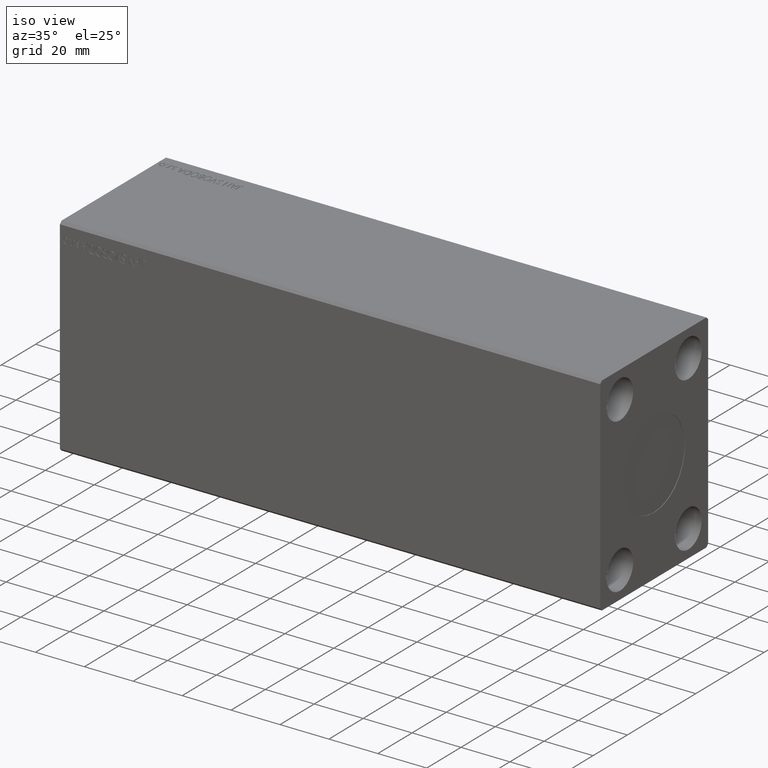
[diagram: clean part render]
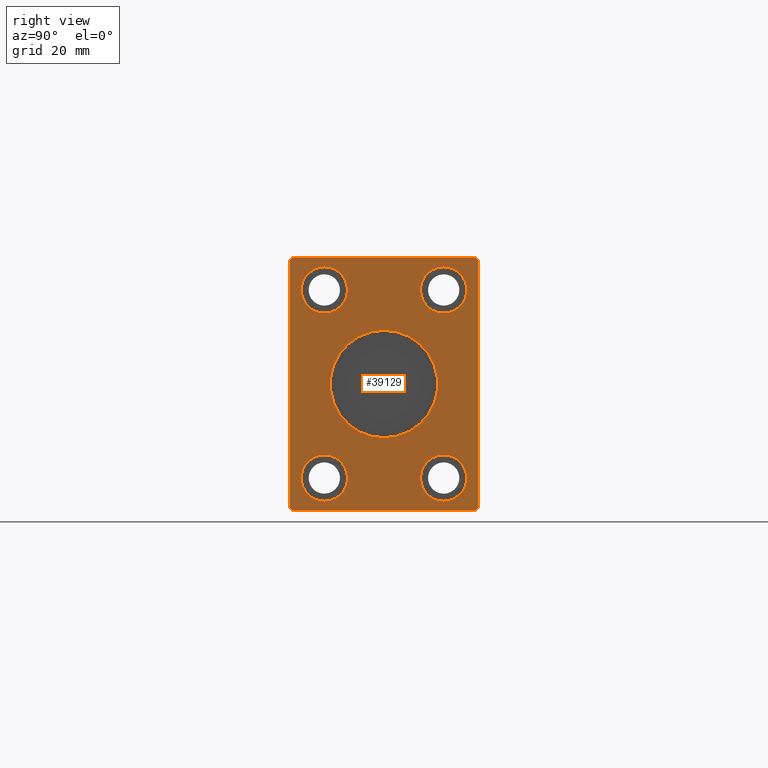
[diagram: tour spotlight — one face highlighted and labeled with its STEP entity id]
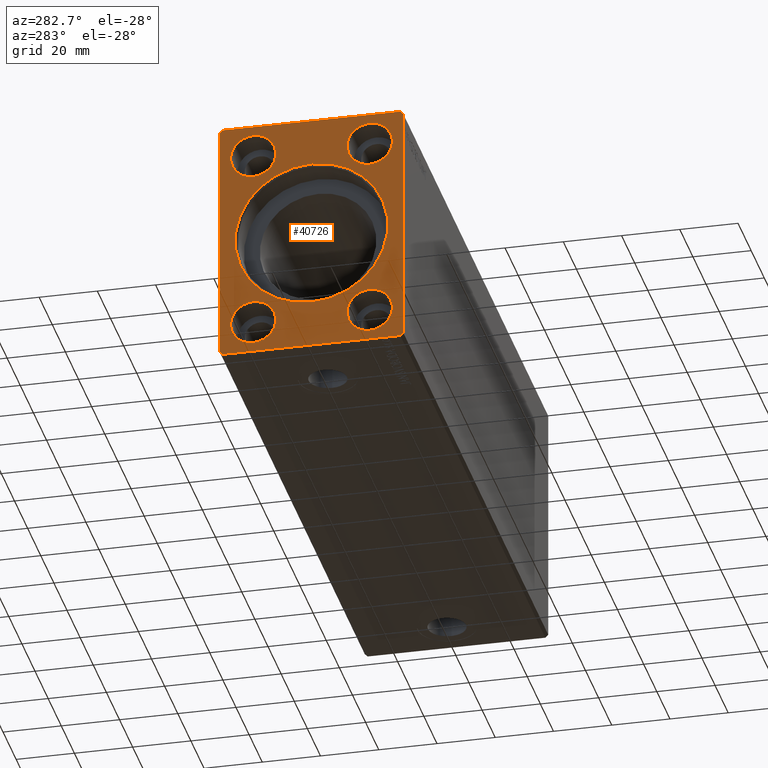
[diagram: tour spotlight — one face highlighted and labeled with its STEP entity id]
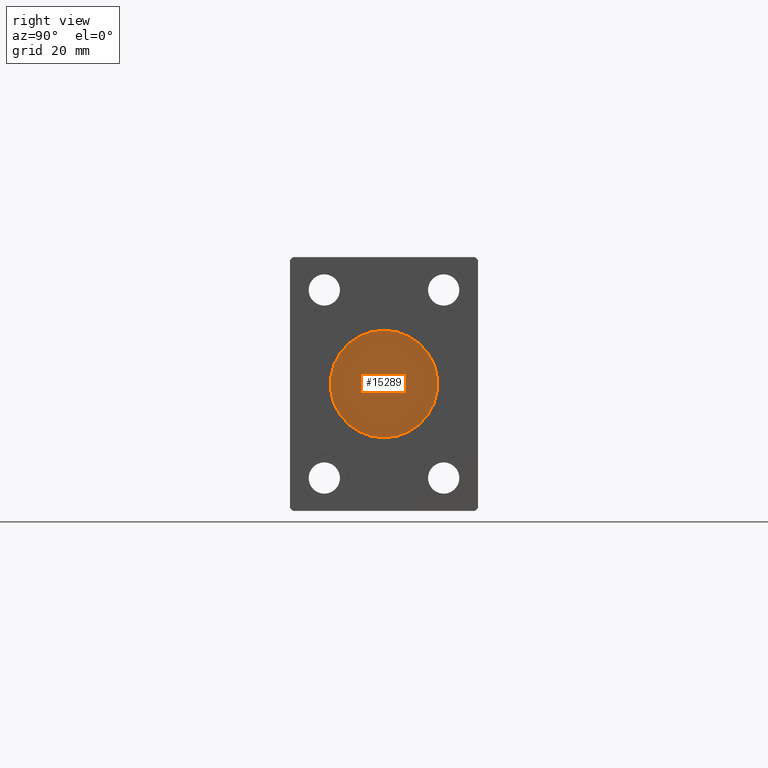
[diagram: tour spotlight — one face highlighted and labeled with its STEP entity id]
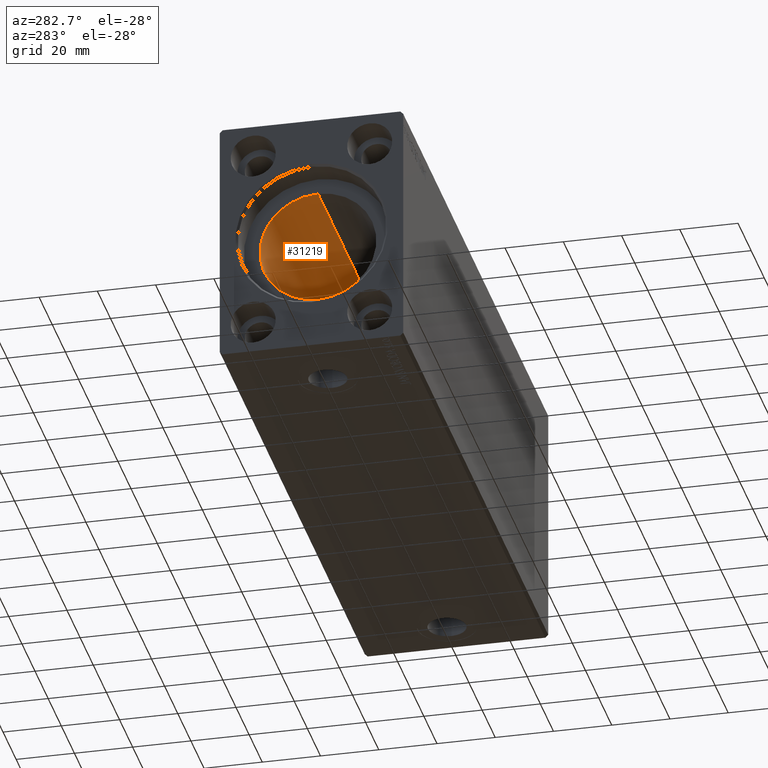
[diagram: tour spotlight — one face highlighted and labeled with its STEP entity id]
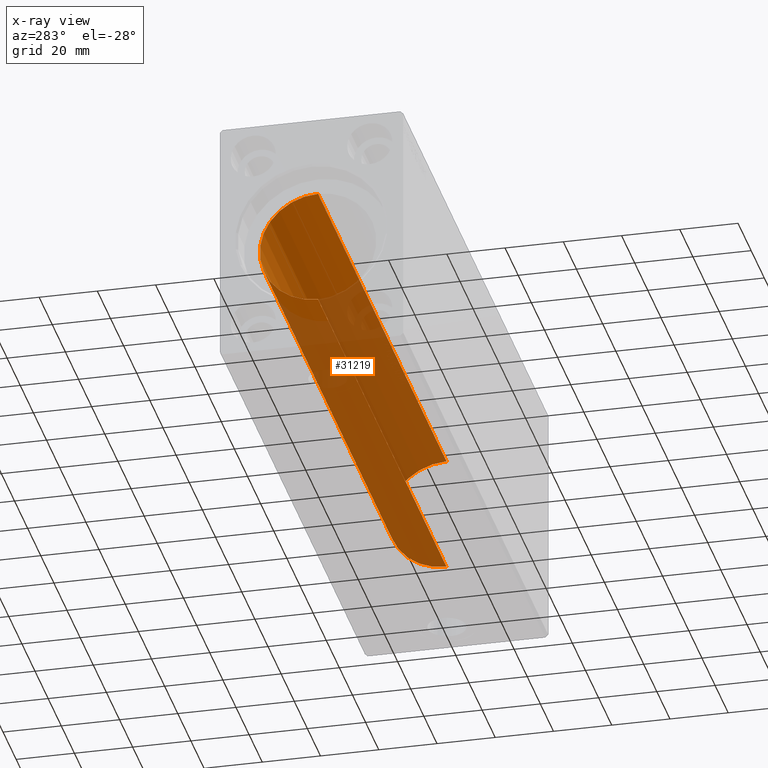
[diagram: x-ray of the same camera — body ghosted, this tour face saturated]
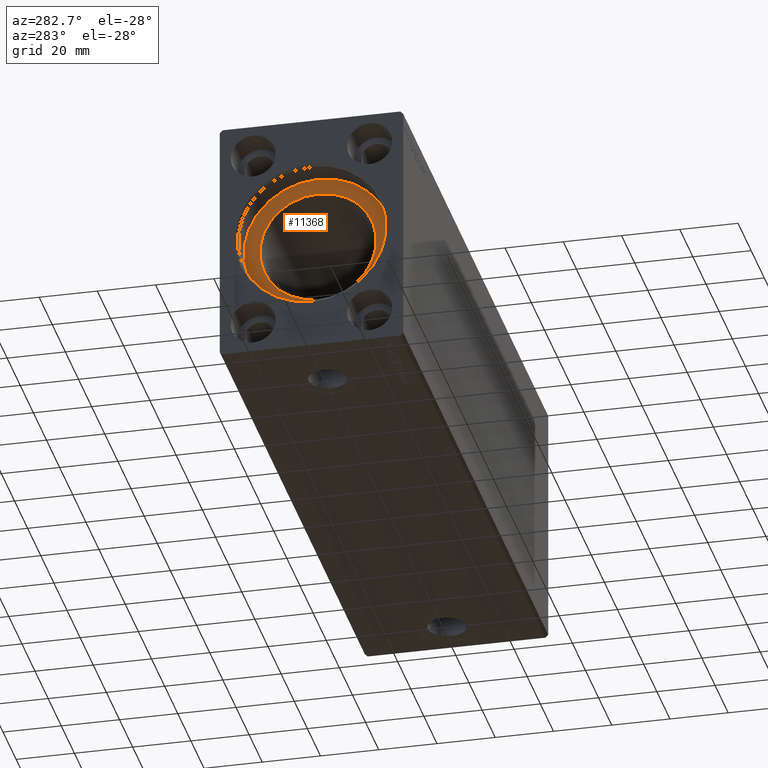
[diagram: tour spotlight — one face highlighted and labeled with its STEP entity id]
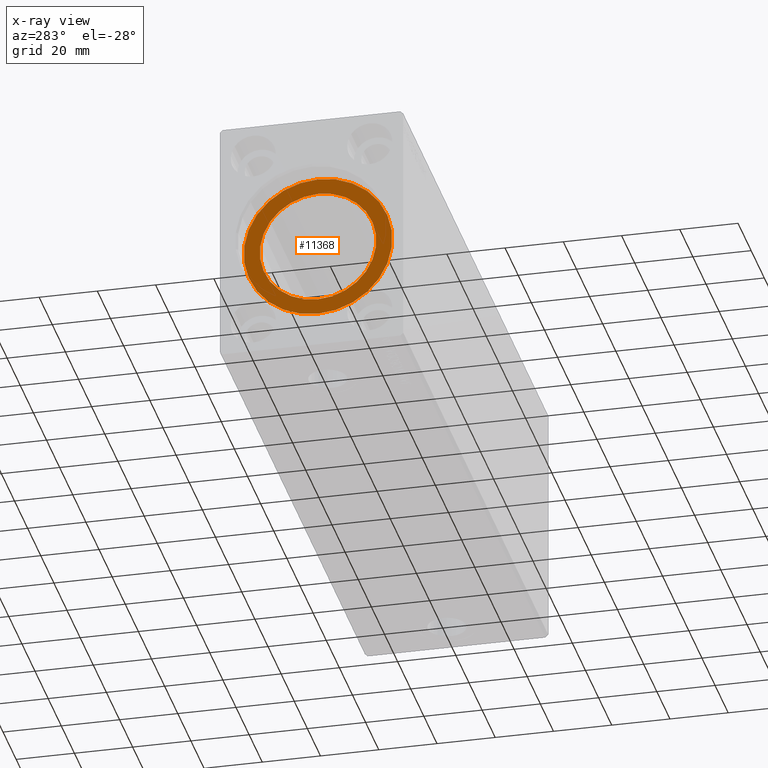
[diagram: x-ray of the same camera — body ghosted, this tour face saturated]
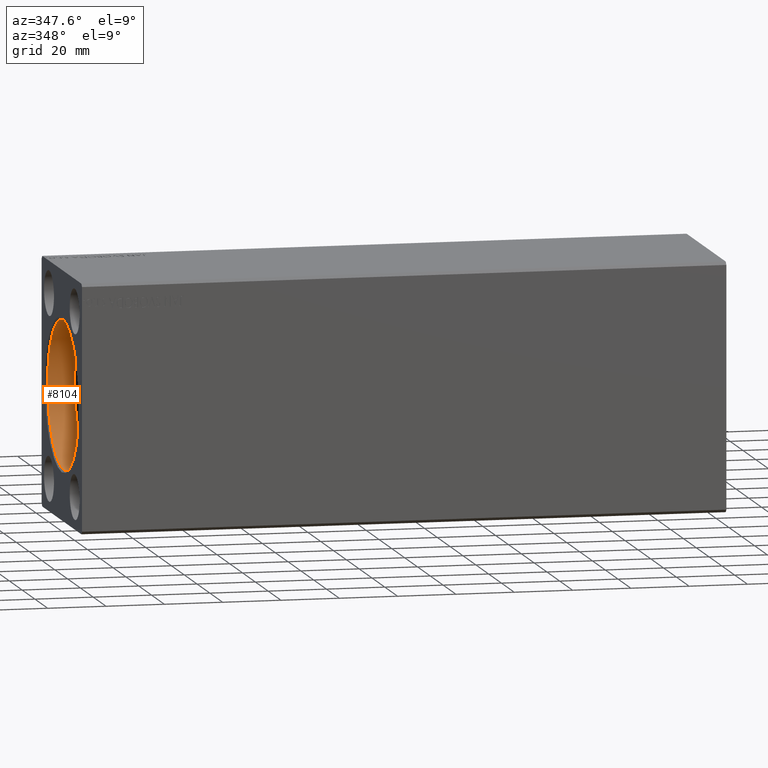
[diagram: tour spotlight — one face highlighted and labeled with its STEP entity id]
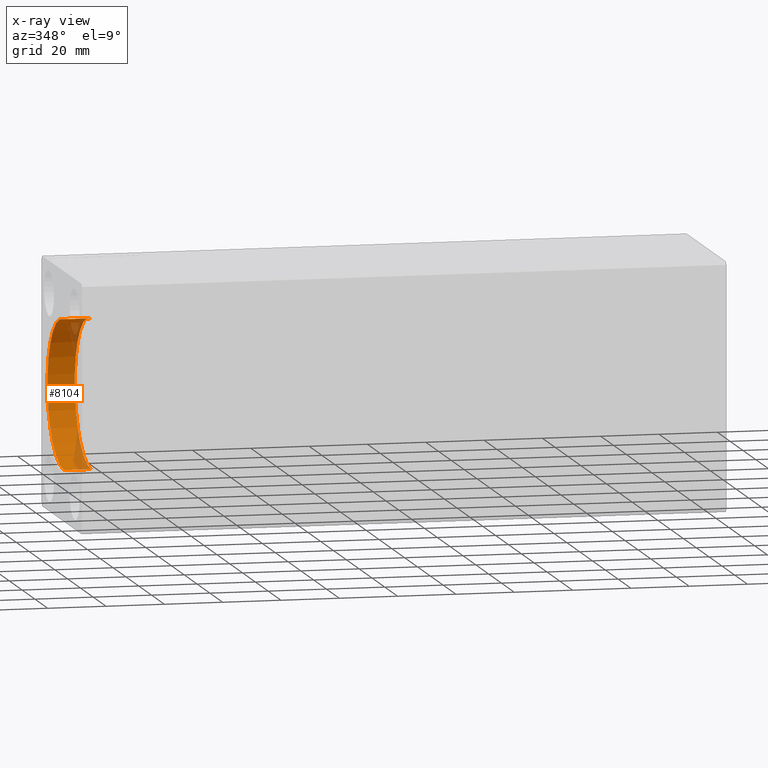
[diagram: x-ray of the same camera — body ghosted, this tour face saturated]
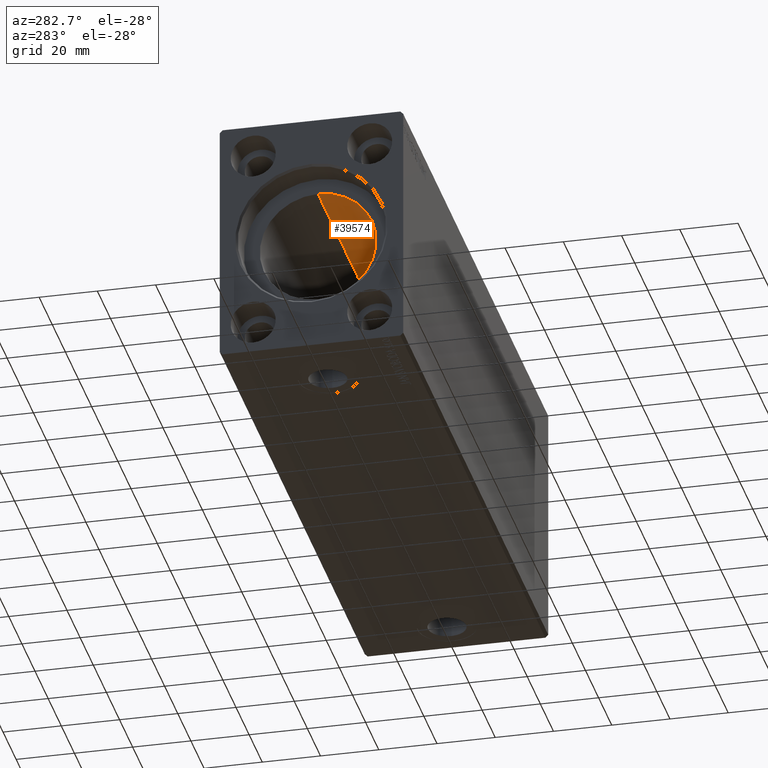
[diagram: tour spotlight — one face highlighted and labeled with its STEP entity id]
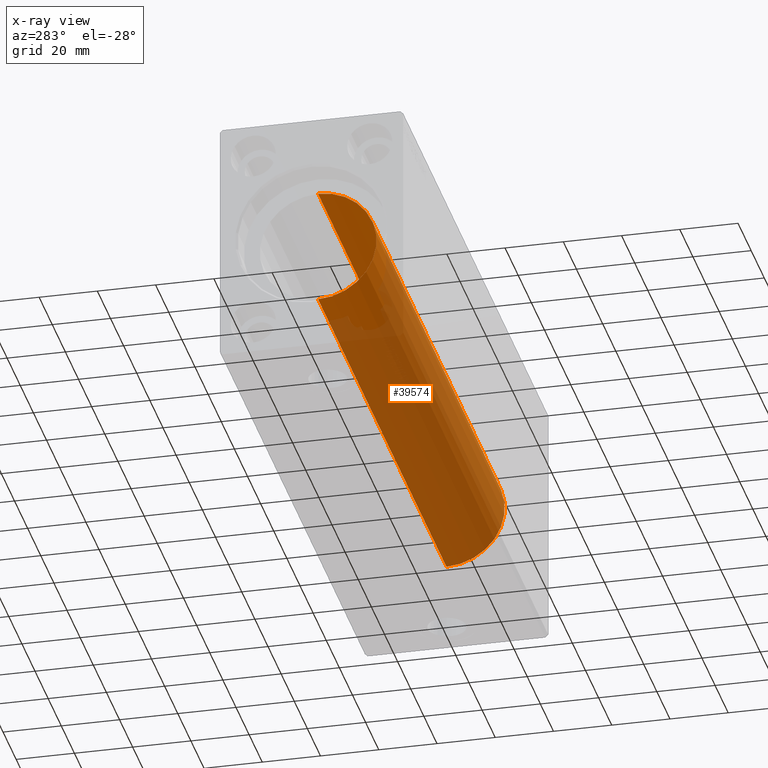
[diagram: x-ray of the same camera — body ghosted, this tour face saturated]
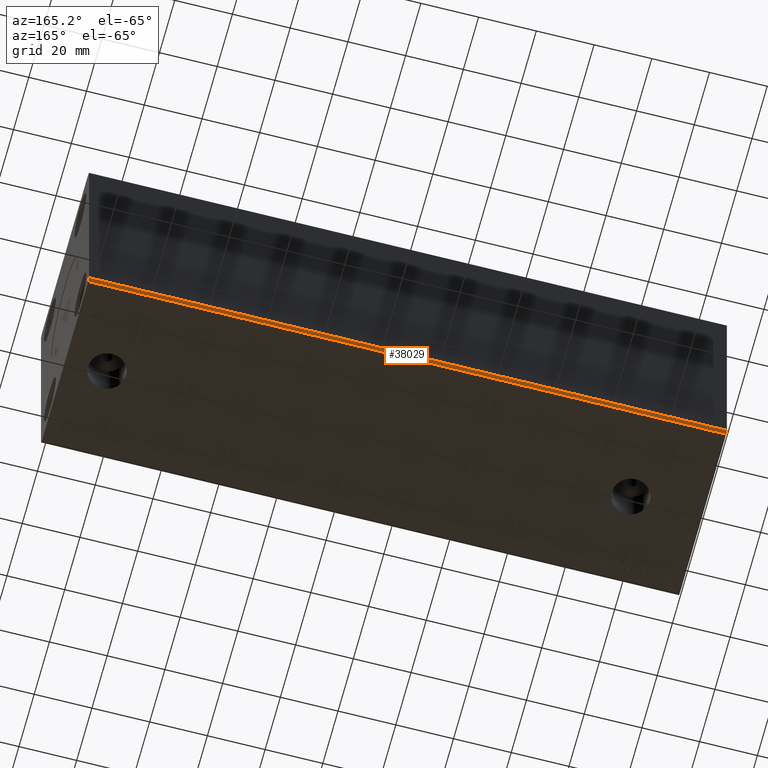
[diagram: tour spotlight — one face highlighted and labeled with its STEP entity id]
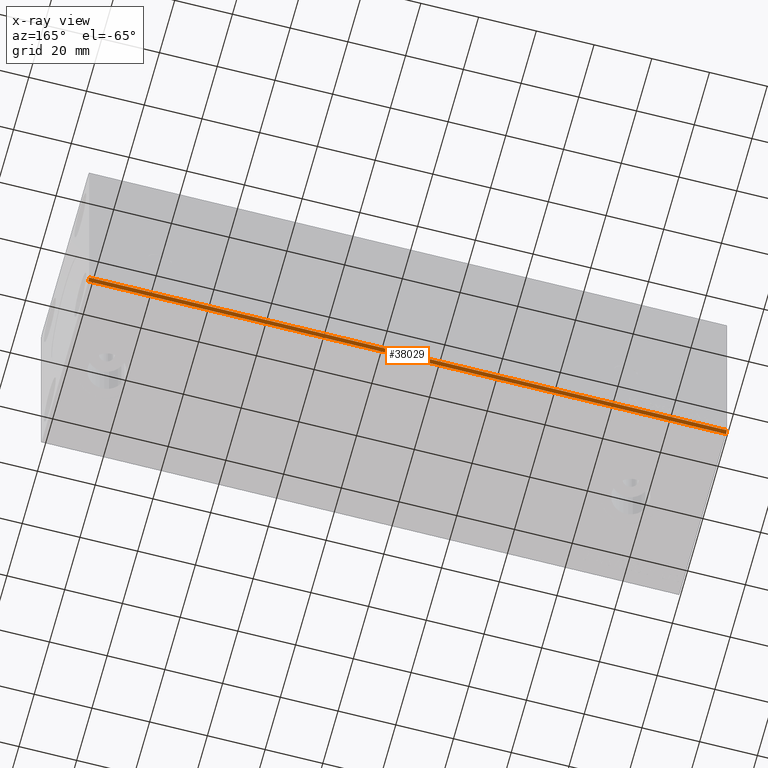
[diagram: x-ray of the same camera — body ghosted, this tour face saturated]
A machine part: a face-by-face anatomy tour. The part has 825 B-rep faces; the first image is the clean iso view, then the 8 largest visible faces are spotlighted one at a time (largest first), each with its STEP entity span.

Face 1 — right view, entity #39129. In plain terms, the highlighted planar face has unit normal (1, 0, 0).
Definition (entity closure, byte-faithful):
#341 = DIRECTION ( 'NONE',  ( 0.000000000000000000, 0.000000000000000000, 1.000000000000000000 ) ) ;
#417 = AXIS2_PLACEMENT_3D ( 'NONE', #29767, #20543, #341 ) ;
#785 = VECTOR ( 'NONE', #29062, 999.9999999999998863 ) ;
#957 = CARTESIAN_POINT ( 'NONE',  ( 221.0000000000000000, 31.50000000000001421, -41.50000000000000711 ) ) ;
#1213 = FACE_BOUND ( 'NONE', #29680, .T. ) ;
#1256 = ORIENTED_EDGE ( 'NONE', *, *, #14949, .T. ) ;
#1743 = CARTESIAN_POINT ( 'NONE',  ( 221.0000000000000000, 20.00000000000000355, -31.49999999999998579 ) ) ;
#1923 = VERTEX_POINT ( 'NONE', #3052 ) ;
#2257 = ORIENTED_EDGE ( 'NONE', *, *, #24322, .F. ) ;
#2526 = CARTESIAN_POINT ( 'NONE',  ( 221.0000000000000000, 31.50000000000001421, 41.49999999999999289 ) ) ;
#2651 = LINE ( 'NONE', #16176, #785 ) ;
#3052 = CARTESIAN_POINT ( 'NONE',  ( 221.0000000000000000, -31.50000000000000000, 41.49999999999999289 ) ) ;
#3591 = EDGE_CURVE ( 'NONE', #37557, #34965, #9207, .T. ) ;
#4457 = DIRECTION ( 'NONE',  ( 1.000000000000000000, 0.000000000000000000, 0.000000000000000000 ) ) ;
#4725 = CARTESIAN_POINT ( 'NONE',  ( 221.0000000000000000, 31.50000000000001421, 41.49999999999999289 ) ) ;
#4845 = VERTEX_POINT ( 'NONE', #11291 ) ;
#4855 = LINE ( 'NONE', #14731, #36877 ) ;
#5134 = CARTESIAN_POINT ( 'NONE',  ( 221.0000000000000000, -30.50000000000000711, -42.50000000000000711 ) ) ;
#5449 = ORIENTED_EDGE ( 'NONE', *, *, #39554, .T. ) ;
#5713 = DIRECTION ( 'NONE',  ( 0.000000000000000000, -1.000000000000000000, 0.000000000000000000 ) ) ;
#5812 = CARTESIAN_POINT ( 'NONE',  ( 221.0000000000000000, -31.50000000000000000, 41.49999999999999289 ) ) ;
#6250 = CARTESIAN_POINT ( 'NONE',  ( 221.0000000000000000, 31.50000000000001421, -41.50000000000000711 ) ) ;
#6489 = LINE ( 'NONE', #36345, #22673 ) ;
#7271 = VERTEX_POINT ( 'NONE', #22446 ) ;
#7612 = ORIENTED_EDGE ( 'NONE', *, *, #20033, .T. ) ;
#7664 = FACE_BOUND ( 'NONE', #26147, .T. ) ;
#7738 = LINE ( 'NONE', #4725, #22469 ) ;
#8086 = ORIENTED_EDGE ( 'NONE', *, *, #33653, .T. ) ;
#8259 = DIRECTION ( 'NONE',  ( -1.000000000000000000, -0.000000000000000000, -0.000000000000000000 ) ) ;
#8443 = DIRECTION ( 'NONE',  ( 1.000000000000000000, 0.000000000000000000, 0.000000000000000000 ) ) ;
#8522 = AXIS2_PLACEMENT_3D ( 'NONE', #10968, #40379, #34145 ) ;
#8622 = EDGE_CURVE ( 'NONE', #32915, #29029, #42210, .T. ) ;
#8890 = CIRCLE ( 'NONE', #17784, 7.750000000000000000 ) ;
#8985 = ORIENTED_EDGE ( 'NONE', *, *, #16016, .T. ) ;
#9207 = CIRCLE ( 'NONE', #8522, 7.750000000000000000 ) ;
#9481 = DIRECTION ( 'NONE',  ( 0.000000000000000000, 0.7071067811865462405, 0.7071067811865489050 ) ) ;
#9503 = DIRECTION ( 'NONE',  ( 1.000000000000000000, 0.000000000000000000, 0.000000000000000000 ) ) ;
#10308 = EDGE_CURVE ( 'NONE', #28322, #35330, #35376, .T. ) ;
#10740 = CIRCLE ( 'NONE', #417, 7.750000000000000000 ) ;
#10824 = CIRCLE ( 'NONE', #32726, 7.750000000000000000 ) ;
#10881 = CARTESIAN_POINT ( 'NONE',  ( 221.0000000000000000, -19.99999999999999645, -31.49999999999998579 ) ) ;
#10891 = VECTOR ( 'NONE', #9481, 999.9999999999998863 ) ;
#10968 = CARTESIAN_POINT ( 'NONE',  ( 221.0000000000000000, 20.00000000000000355, 31.50000000000001421 ) ) ;
#11075 = ORIENTED_EDGE ( 'NONE', *, *, #3591, .F. ) ;
#11146 = ORIENTED_EDGE ( 'NONE', *, *, #10308, .F. ) ;
#11291 = CARTESIAN_POINT ( 'NONE',  ( 221.0000000000000000, -30.50000000000000355, 42.49999999999999289 ) ) ;
#11764 = DIRECTION ( 'NONE',  ( 0.000000000000000000, 0.000000000000000000, -1.000000000000000000 ) ) ;
#12032 = DIRECTION ( 'NONE',  ( 0.000000000000000000, 0.000000000000000000, -1.000000000000000000 ) ) ;
#12129 = CARTESIAN_POINT ( 'NONE',  ( 221.0000000000000000, -19.99999999999999645, 31.50000000000001421 ) ) ;
#12436 = EDGE_LOOP ( 'NONE', ( #1256, #24759 ) ) ;
#12812 = VECTOR ( 'NONE', #38686, 1000.000000000000000 ) ;
#13115 = DIRECTION ( 'NONE',  ( -1.000000000000000000, -0.000000000000000000, -0.000000000000000000 ) ) ;
#14249 = CARTESIAN_POINT ( 'NONE',  ( 221.0000000000000000, 20.00000000000000355, -39.24999999999998579 ) ) ;
#14400 = AXIS2_PLACEMENT_3D ( 'NONE', #10881, #24593, #20755 ) ;
#14475 = DIRECTION ( 'NONE',  ( 0.000000000000000000, 0.000000000000000000, -1.000000000000000000 ) ) ;
#14731 = CARTESIAN_POINT ( 'NONE',  ( 221.0000000000000000, 30.50000000000001421, 42.49999999999999289 ) ) ;
#14822 = AXIS2_PLACEMENT_3D ( 'NONE', #12129, #8259, #18136 ) ;
#14949 = EDGE_CURVE ( 'NONE', #22134, #41064, #25101, .T. ) ;
#15284 = CARTESIAN_POINT ( 'NONE',  ( 221.0000000000000000, 2.204364238465235428E-15, 18.00000000000000000 ) ) ;
#15804 = VERTEX_POINT ( 'NONE', #957 ) ;
#16011 = ORIENTED_EDGE ( 'NONE', *, *, #24375, .T. ) ;
#16016 = EDGE_CURVE ( 'NONE', #33918, #26304, #24896, .T. ) ;
#16176 = CARTESIAN_POINT ( 'NONE',  ( 221.0000000000000000, -30.50000000000000355, 42.49999999999999289 ) ) ;
#16375 = ORIENTED_EDGE ( 'NONE', *, *, #41716, .T. ) ;
#16573 = CARTESIAN_POINT ( 'NONE',  ( 221.0000000000000000, 20.00000000000000355, 39.25000000000001421 ) ) ;
#16709 = CARTESIAN_POINT ( 'NONE',  ( 221.0000000000000000, 30.50000000000001776, -42.50000000000000711 ) ) ;
#16859 = AXIS2_PLACEMENT_3D ( 'NONE', #38916, #9503, #35695 ) ;
#16978 = EDGE_CURVE ( 'NONE', #15804, #18861, #18936, .T. ) ;
#17283 = DIRECTION ( 'NONE',  ( 1.000000000000000000, -0.000000000000000000, -0.000000000000000000 ) ) ;
#17784 = AXIS2_PLACEMENT_3D ( 'NONE', #36083, #13115, #32224 ) ;
#18136 = DIRECTION ( 'NONE',  ( 0.000000000000000000, 0.000000000000000000, 1.000000000000000000 ) ) ;
#18243 = DIRECTION ( 'NONE',  ( 0.000000000000000000, 1.000000000000000000, 0.000000000000000000 ) ) ;
#18861 = VERTEX_POINT ( 'NONE', #2526 ) ;
#18864 = CARTESIAN_POINT ( 'NONE',  ( 221.0000000000000000, -30.50000000000000711, -42.50000000000000711 ) ) ;
#18915 = DIRECTION ( 'NONE',  ( 0.000000000000000000, 0.000000000000000000, -1.000000000000000000 ) ) ;
#18936 = LINE ( 'NONE', #6250, #12812 ) ;
#19010 = EDGE_LOOP ( 'NONE', ( #16011, #7612, #16375, #26752, #5449, #8985, #8086, #20874 ) ) ;
#19476 = ORIENTED_EDGE ( 'NONE', *, *, #23565, .F. ) ;
#20033 = EDGE_CURVE ( 'NONE', #27457, #4845, #4855, .T. ) ;
#20250 = AXIS2_PLACEMENT_3D ( 'NONE', #1743, #24737, #21098 ) ;
#20280 = EDGE_CURVE ( 'NONE', #34965, #37557, #28634, .T. ) ;
#20543 = DIRECTION ( 'NONE',  ( -1.000000000000000000, -0.000000000000000000, -0.000000000000000000 ) ) ;
#20755 = DIRECTION ( 'NONE',  ( 0.000000000000000000, 0.000000000000000000, -1.000000000000000000 ) ) ;
#20816 = CARTESIAN_POINT ( 'NONE',  ( 221.0000000000000000, -19.99999999999999645, -23.74999999999998579 ) ) ;
#20874 = ORIENTED_EDGE ( 'NONE', *, *, #16978, .T. ) ;
#21084 = AXIS2_PLACEMENT_3D ( 'NONE', #34011, #17283, #14475 ) ;
#21098 = DIRECTION ( 'NONE',  ( 0.000000000000000000, 0.000000000000000000, 1.000000000000000000 ) ) ;
#21244 = EDGE_CURVE ( 'NONE', #29029, #32915, #10740, .T. ) ;
#21354 = CARTESIAN_POINT ( 'NONE',  ( 221.0000000000000000, 20.00000000000000355, 23.75000000000001421 ) ) ;
#22134 = VERTEX_POINT ( 'NONE', #27196 ) ;
#22446 = CARTESIAN_POINT ( 'NONE',  ( 221.0000000000000000, -31.50000000000000000, -41.50000000000000711 ) ) ;
#22469 = VECTOR ( 'NONE', #31348, 1000.000000000000114 ) ;
#22673 = VECTOR ( 'NONE', #22812, 1000.000000000000114 ) ;
#22812 = DIRECTION ( 'NONE',  ( 0.000000000000000000, 0.7071067811865451302, -0.7071067811865500152 ) ) ;
#23362 = CARTESIAN_POINT ( 'NONE',  ( 221.0000000000000000, -19.99999999999999645, 39.25000000000001421 ) ) ;
#23565 = EDGE_CURVE ( 'NONE', #35330, #28322, #39569, .T. ) ;
#23669 = EDGE_LOOP ( 'NONE', ( #25460, #11075 ) ) ;
#24322 = EDGE_CURVE ( 'NONE', #32833, #38803, #10824, .T. ) ;
#24375 = EDGE_CURVE ( 'NONE', #18861, #27457, #7738, .T. ) ;
#24593 = DIRECTION ( 'NONE',  ( 1.000000000000000000, -0.000000000000000000, -0.000000000000000000 ) ) ;
#24636 = CARTESIAN_POINT ( 'NONE',  ( 221.0000000000000000, 0.000000000000000000, 0.000000000000000000 ) ) ;
#24737 = DIRECTION ( 'NONE',  ( -1.000000000000000000, -0.000000000000000000, -0.000000000000000000 ) ) ;
#24759 = ORIENTED_EDGE ( 'NONE', *, *, #31131, .T. ) ;
#24896 = LINE ( 'NONE', #5134, #34721 ) ;
#25101 = CIRCLE ( 'NONE', #14822, 7.750000000000000000 ) ;
#25120 = DIRECTION ( 'NONE',  ( 1.000000000000000000, -0.000000000000000000, -0.000000000000000000 ) ) ;
#25460 = ORIENTED_EDGE ( 'NONE', *, *, #20280, .F. ) ;
#26125 = ORIENTED_EDGE ( 'NONE', *, *, #8622, .T. ) ;
#26147 = EDGE_LOOP ( 'NONE', ( #38707, #26125 ) ) ;
#26304 = VERTEX_POINT ( 'NONE', #16709 ) ;
#26405 = LINE ( 'NONE', #5812, #41099 ) ;
#26564 = FACE_OUTER_BOUND ( 'NONE', #19010, .T. ) ;
#26752 = ORIENTED_EDGE ( 'NONE', *, *, #30350, .T. ) ;
#26988 = FACE_BOUND ( 'NONE', #12436, .T. ) ;
#27196 = CARTESIAN_POINT ( 'NONE',  ( 221.0000000000000000, -19.99999999999999645, 23.75000000000001421 ) ) ;
#27457 = VERTEX_POINT ( 'NONE', #39744 ) ;
#28322 = VERTEX_POINT ( 'NONE', #36993 ) ;
#28634 = CIRCLE ( 'NONE', #21084, 7.750000000000000000 ) ;
#28838 = AXIS2_PLACEMENT_3D ( 'NONE', #36871, #8443, #33649 ) ;
#29029 = VERTEX_POINT ( 'NONE', #14249 ) ;
#29062 = DIRECTION ( 'NONE',  ( 0.000000000000000000, -0.7071067811865462405, -0.7071067811865489050 ) ) ;
#29680 = EDGE_LOOP ( 'NONE', ( #2257, #30361 ) ) ;
#29767 = CARTESIAN_POINT ( 'NONE',  ( 221.0000000000000000, 20.00000000000000355, -31.49999999999998579 ) ) ;
#30350 = EDGE_CURVE ( 'NONE', #1923, #7271, #26405, .T. ) ;
#30361 = ORIENTED_EDGE ( 'NONE', *, *, #37986, .F. ) ;
#30636 = FACE_BOUND ( 'NONE', #37291, .T. ) ;
#31131 = EDGE_CURVE ( 'NONE', #41064, #22134, #8890, .T. ) ;
#31348 = DIRECTION ( 'NONE',  ( 0.000000000000000000, -0.7071067811865474617, 0.7071067811865474617 ) ) ;
#32024 = CARTESIAN_POINT ( 'NONE',  ( 221.0000000000000000, 30.50000000000001776, -42.50000000000000711 ) ) ;
#32224 = DIRECTION ( 'NONE',  ( 0.000000000000000000, 0.000000000000000000, 1.000000000000000000 ) ) ;
#32726 = AXIS2_PLACEMENT_3D ( 'NONE', #41234, #25120, #12032 ) ;
#32833 = VERTEX_POINT ( 'NONE', #39991 ) ;
#32909 = CIRCLE ( 'NONE', #14400, 7.750000000000000000 ) ;
#32915 = VERTEX_POINT ( 'NONE', #42320 ) ;
#33649 = DIRECTION ( 'NONE',  ( 0.000000000000000000, 0.000000000000000000, -1.000000000000000000 ) ) ;
#33653 = EDGE_CURVE ( 'NONE', #26304, #15804, #39312, .T. ) ;
#33918 = VERTEX_POINT ( 'NONE', #18864 ) ;
#34011 = CARTESIAN_POINT ( 'NONE',  ( 221.0000000000000000, 20.00000000000000355, 31.50000000000001421 ) ) ;
#34145 = DIRECTION ( 'NONE',  ( 0.000000000000000000, 0.000000000000000000, -1.000000000000000000 ) ) ;
#34721 = VECTOR ( 'NONE', #18243, 1000.000000000000000 ) ;
#34965 = VERTEX_POINT ( 'NONE', #21354 ) ;
#35330 = VERTEX_POINT ( 'NONE', #15284 ) ;
#35376 = CIRCLE ( 'NONE', #16859, 18.00000000000000000 ) ;
#35695 = DIRECTION ( 'NONE',  ( 0.000000000000000000, 0.000000000000000000, -1.000000000000000000 ) ) ;
#36083 = CARTESIAN_POINT ( 'NONE',  ( 221.0000000000000000, -19.99999999999999645, 31.50000000000001421 ) ) ;
#36345 = CARTESIAN_POINT ( 'NONE',  ( 221.0000000000000000, -31.50000000000000000, -41.50000000000000711 ) ) ;
#36844 = AXIS2_PLACEMENT_3D ( 'NONE', #24636, #4457, #11764 ) ;
#36871 = CARTESIAN_POINT ( 'NONE',  ( 221.0000000000000000, 0.000000000000000000, 0.000000000000000000 ) ) ;
#36877 = VECTOR ( 'NONE', #5713, 1000.000000000000000 ) ;
#36993 = CARTESIAN_POINT ( 'NONE',  ( 221.0000000000000000, 0.000000000000000000, -18.00000000000000000 ) ) ;
#37289 = PLANE ( 'NONE',  #28838 ) ;
#37291 = EDGE_LOOP ( 'NONE', ( #11146, #19476 ) ) ;
#37557 = VERTEX_POINT ( 'NONE', #16573 ) ;
#37986 = EDGE_CURVE ( 'NONE', #38803, #32833, #32909, .T. ) ;
#38686 = DIRECTION ( 'NONE',  ( 0.000000000000000000, 0.000000000000000000, 1.000000000000000000 ) ) ;
#38707 = ORIENTED_EDGE ( 'NONE', *, *, #21244, .T. ) ;
#38803 = VERTEX_POINT ( 'NONE', #20816 ) ;
#38916 = CARTESIAN_POINT ( 'NONE',  ( 221.0000000000000000, 0.000000000000000000, 0.000000000000000000 ) ) ;
#39129 = ADVANCED_FACE ( 'NONE', ( #30636, #26988, #7664, #26564, #1213, #40091 ), #37289, .T. ) ;
#39312 = LINE ( 'NONE', #32024, #10891 ) ;
#39554 = EDGE_CURVE ( 'NONE', #7271, #33918, #6489, .T. ) ;
#39569 = CIRCLE ( 'NONE', #36844, 18.00000000000000000 ) ;
#39744 = CARTESIAN_POINT ( 'NONE',  ( 221.0000000000000000, 30.50000000000001421, 42.49999999999999289 ) ) ;
#39991 = CARTESIAN_POINT ( 'NONE',  ( 221.0000000000000000, -19.99999999999999645, -39.24999999999998579 ) ) ;
#40091 = FACE_BOUND ( 'NONE', #23669, .T. ) ;
#40379 = DIRECTION ( 'NONE',  ( 1.000000000000000000, -0.000000000000000000, -0.000000000000000000 ) ) ;
#41064 = VERTEX_POINT ( 'NONE', #23362 ) ;
#41099 = VECTOR ( 'NONE', #18915, 1000.000000000000000 ) ;
#41234 = CARTESIAN_POINT ( 'NONE',  ( 221.0000000000000000, -19.99999999999999645, -31.49999999999998579 ) ) ;
#41716 = EDGE_CURVE ( 'NONE', #4845, #1923, #2651, .T. ) ;
#42210 = CIRCLE ( 'NONE', #20250, 7.750000000000000000 ) ;
#42320 = CARTESIAN_POINT ( 'NONE',  ( 221.0000000000000000, 20.00000000000000355, -23.74999999999998579 ) ) ;

Face 2 — auxiliary view, entity #40726. In plain terms, the highlighted planar face has unit normal (1, 0, 0).
Definition (entity closure, byte-faithful):
#108 = VERTEX_POINT ( 'NONE', #9451 ) ;
#195 = DIRECTION ( 'NONE',  ( 0.000000000000000000, 0.000000000000000000, -1.000000000000000000 ) ) ;
#297 = EDGE_LOOP ( 'NONE', ( #8082, #22822 ) ) ;
#408 = DIRECTION ( 'NONE',  ( -1.000000000000000000, 0.000000000000000000, 0.000000000000000000 ) ) ;
#573 = DIRECTION ( 'NONE',  ( 0.000000000000000000, -0.7071067811865474617, 0.7071067811865474617 ) ) ;
#745 = CARTESIAN_POINT ( 'NONE',  ( 0.000000000000000000, -19.99999999999999645, 31.50000000000001421 ) ) ;
#1316 = EDGE_CURVE ( 'NONE', #18645, #30791, #3794, .T. ) ;
#1529 = DIRECTION ( 'NONE',  ( 0.000000000000000000, 0.000000000000000000, 1.000000000000000000 ) ) ;
#1690 = CARTESIAN_POINT ( 'NONE',  ( 0.000000000000000000, 0.000000000000000000, 26.19999999999997442 ) ) ;
#1701 = DIRECTION ( 'NONE',  ( 0.000000000000000000, 0.000000000000000000, -1.000000000000000000 ) ) ;
#1735 = DIRECTION ( 'NONE',  ( 0.000000000000000000, 1.000000000000000000, 0.000000000000000000 ) ) ;
#1768 = VERTEX_POINT ( 'NONE', #30786 ) ;
#2192 = EDGE_CURVE ( 'NONE', #13836, #39231, #4341, .T. ) ;
#2222 = FACE_BOUND ( 'NONE', #42081, .T. ) ;
#2335 = EDGE_CURVE ( 'NONE', #2465, #26840, #18077, .T. ) ;
#2465 = VERTEX_POINT ( 'NONE', #36507 ) ;
#2663 = CARTESIAN_POINT ( 'NONE',  ( 0.000000000000000000, 30.50000000000001776, -42.50000000000000711 ) ) ;
#3229 = ORIENTED_EDGE ( 'NONE', *, *, #40265, .F. ) ;
#3794 = LINE ( 'NONE', #27199, #42067 ) ;
#4164 = ORIENTED_EDGE ( 'NONE', *, *, #24519, .F. ) ;
#4185 = VERTEX_POINT ( 'NONE', #38537 ) ;
#4341 = CIRCLE ( 'NONE', #21509, 7.750000000000000000 ) ;
#4536 = DIRECTION ( 'NONE',  ( 0.000000000000000000, 0.000000000000000000, -1.000000000000000000 ) ) ;
#4599 = CARTESIAN_POINT ( 'NONE',  ( 0.000000000000000000, 0.000000000000000000, 0.000000000000000000 ) ) ;
#5015 = CARTESIAN_POINT ( 'NONE',  ( 0.000000000000000000, 20.00000000000000355, -23.74999999999998579 ) ) ;
#5623 = CARTESIAN_POINT ( 'NONE',  ( 0.000000000000000000, -30.50000000000000711, -42.50000000000000711 ) ) ;
#5910 = VECTOR ( 'NONE', #1735, 1000.000000000000000 ) ;
#6029 = CARTESIAN_POINT ( 'NONE',  ( 0.000000000000000000, 0.000000000000000000, 0.000000000000000000 ) ) ;
#7256 = AXIS2_PLACEMENT_3D ( 'NONE', #15733, #25181, #12508 ) ;
#8082 = ORIENTED_EDGE ( 'NONE', *, *, #18600, .T. ) ;
#8409 = LINE ( 'NONE', #5623, #5910 ) ;
#8813 = ORIENTED_EDGE ( 'NONE', *, *, #17519, .F. ) ;
#8839 = EDGE_CURVE ( 'NONE', #21003, #17123, #39455, .T. ) ;
#9367 = EDGE_CURVE ( 'NONE', #26840, #2465, #23724, .T. ) ;
#9451 = CARTESIAN_POINT ( 'NONE',  ( 0.000000000000000000, 31.50000000000001421, -41.50000000000000711 ) ) ;
#9487 = CARTESIAN_POINT ( 'NONE',  ( 0.000000000000000000, 20.00000000000000355, -39.24999999999998579 ) ) ;
#10024 = CIRCLE ( 'NONE', #7256, 7.750000000000000000 ) ;
#10202 = EDGE_CURVE ( 'NONE', #39231, #13836, #10024, .T. ) ;
#10979 = ORIENTED_EDGE ( 'NONE', *, *, #33422, .F. ) ;
#11277 = LINE ( 'NONE', #40899, #15669 ) ;
#11318 = DIRECTION ( 'NONE',  ( 0.000000000000000000, -0.7071067811865462405, -0.7071067811865489050 ) ) ;
#11496 = VECTOR ( 'NONE', #33042, 1000.000000000000000 ) ;
#11844 = DIRECTION ( 'NONE',  ( 1.000000000000000000, -0.000000000000000000, -0.000000000000000000 ) ) ;
#12117 = FACE_BOUND ( 'NONE', #297, .T. ) ;
#12273 = CIRCLE ( 'NONE', #31476, 7.750000000000000000 ) ;
#12508 = DIRECTION ( 'NONE',  ( 0.000000000000000000, 0.000000000000000000, -1.000000000000000000 ) ) ;
#12846 = CIRCLE ( 'NONE', #32721, 7.750000000000000000 ) ;
#13295 = VERTEX_POINT ( 'NONE', #5015 ) ;
#13343 = DIRECTION ( 'NONE',  ( -1.000000000000000000, 0.000000000000000000, 0.000000000000000000 ) ) ;
#13516 = DIRECTION ( 'NONE',  ( 1.000000000000000000, -0.000000000000000000, -0.000000000000000000 ) ) ;
#13551 = CARTESIAN_POINT ( 'NONE',  ( 0.000000000000000000, -19.99999999999999645, 39.25000000000001421 ) ) ;
#13670 = VERTEX_POINT ( 'NONE', #42111 ) ;
#13836 = VERTEX_POINT ( 'NONE', #33714 ) ;
#14135 = AXIS2_PLACEMENT_3D ( 'NONE', #27746, #28182, #40849 ) ;
#14224 = DIRECTION ( 'NONE',  ( -1.000000000000000000, 0.000000000000000000, 0.000000000000000000 ) ) ;
#14899 = FACE_BOUND ( 'NONE', #23274, .T. ) ;
#15056 = CARTESIAN_POINT ( 'NONE',  ( 0.000000000000000000, -19.99999999999999645, -31.49999999999998579 ) ) ;
#15331 = FACE_BOUND ( 'NONE', #34358, .T. ) ;
#15367 = VERTEX_POINT ( 'NONE', #13551 ) ;
#15403 = VERTEX_POINT ( 'NONE', #16564 ) ;
#15669 = VECTOR ( 'NONE', #37684, 1000.000000000000114 ) ;
#15733 = CARTESIAN_POINT ( 'NONE',  ( 0.000000000000000000, -19.99999999999999645, -31.49999999999998579 ) ) ;
#15764 = EDGE_CURVE ( 'NONE', #42261, #4185, #8409, .T. ) ;
#16198 = ORIENTED_EDGE ( 'NONE', *, *, #9367, .T. ) ;
#16564 = CARTESIAN_POINT ( 'NONE',  ( 0.000000000000000000, -19.99999999999999645, 23.75000000000001421 ) ) ;
#16902 = VERTEX_POINT ( 'NONE', #9487 ) ;
#17123 = VERTEX_POINT ( 'NONE', #27646 ) ;
#17174 = AXIS2_PLACEMENT_3D ( 'NONE', #29865, #13343, #26435 ) ;
#17519 = EDGE_CURVE ( 'NONE', #4185, #108, #32296, .T. ) ;
#17601 = CARTESIAN_POINT ( 'NONE',  ( 0.000000000000000000, -19.99999999999999645, 31.50000000000001421 ) ) ;
#17688 = CIRCLE ( 'NONE', #36904, 7.750000000000000000 ) ;
#17713 = DIRECTION ( 'NONE',  ( 1.000000000000000000, 0.000000000000000000, 0.000000000000000000 ) ) ;
#18077 = CIRCLE ( 'NONE', #22865, 26.19999999999997442 ) ;
#18161 = ORIENTED_EDGE ( 'NONE', *, *, #26721, .F. ) ;
#18504 = DIRECTION ( 'NONE',  ( 1.000000000000000000, 0.000000000000000000, 0.000000000000000000 ) ) ;
#18600 = EDGE_CURVE ( 'NONE', #17123, #21003, #12846, .T. ) ;
#18645 = VERTEX_POINT ( 'NONE', #26398 ) ;
#18823 = CARTESIAN_POINT ( 'NONE',  ( 0.000000000000000000, -30.50000000000000355, 42.49999999999999289 ) ) ;
#19230 = LINE ( 'NONE', #39393, #32058 ) ;
#19277 = EDGE_CURVE ( 'NONE', #34544, #1768, #19230, .T. ) ;
#20369 = CARTESIAN_POINT ( 'NONE',  ( 0.000000000000000000, 30.50000000000001421, 42.49999999999999289 ) ) ;
#20441 = DIRECTION ( 'NONE',  ( 0.000000000000000000, 0.000000000000000000, 1.000000000000000000 ) ) ;
#21003 = VERTEX_POINT ( 'NONE', #31944 ) ;
#21509 = AXIS2_PLACEMENT_3D ( 'NONE', #15056, #11844, #4536 ) ;
#21980 = CARTESIAN_POINT ( 'NONE',  ( 0.000000000000000000, 30.50000000000001421, 42.49999999999999289 ) ) ;
#22822 = ORIENTED_EDGE ( 'NONE', *, *, #8839, .T. ) ;
#22849 = ORIENTED_EDGE ( 'NONE', *, *, #10202, .T. ) ;
#22865 = AXIS2_PLACEMENT_3D ( 'NONE', #6029, #18504, #25774 ) ;
#23274 = EDGE_LOOP ( 'NONE', ( #23487, #22849 ) ) ;
#23412 = AXIS2_PLACEMENT_3D ( 'NONE', #17601, #408, #27254 ) ;
#23487 = ORIENTED_EDGE ( 'NONE', *, *, #2192, .T. ) ;
#23688 = AXIS2_PLACEMENT_3D ( 'NONE', #27277, #41233, #1701 ) ;
#23724 = CIRCLE ( 'NONE', #14135, 26.19999999999997442 ) ;
#24325 = ORIENTED_EDGE ( 'NONE', *, *, #2335, .T. ) ;
#24519 = EDGE_CURVE ( 'NONE', #30791, #13670, #33682, .T. ) ;
#24693 = CARTESIAN_POINT ( 'NONE',  ( 0.000000000000000000, -19.99999999999999645, -39.24999999999998579 ) ) ;
#25181 = DIRECTION ( 'NONE',  ( 1.000000000000000000, -0.000000000000000000, -0.000000000000000000 ) ) ;
#25718 = ORIENTED_EDGE ( 'NONE', *, *, #27973, .F. ) ;
#25774 = DIRECTION ( 'NONE',  ( 0.000000000000000000, 0.000000000000000000, -1.000000000000000000 ) ) ;
#26168 = CIRCLE ( 'NONE', #23412, 7.750000000000000000 ) ;
#26398 = CARTESIAN_POINT ( 'NONE',  ( 0.000000000000000000, 31.50000000000001421, 41.49999999999999289 ) ) ;
#26435 = DIRECTION ( 'NONE',  ( 0.000000000000000000, 0.000000000000000000, 1.000000000000000000 ) ) ;
#26721 = EDGE_CURVE ( 'NONE', #16902, #13295, #17688, .T. ) ;
#26840 = VERTEX_POINT ( 'NONE', #1690 ) ;
#26880 = CARTESIAN_POINT ( 'NONE',  ( 0.000000000000000000, 31.50000000000001421, -41.50000000000000711 ) ) ;
#27199 = CARTESIAN_POINT ( 'NONE',  ( 0.000000000000000000, 31.50000000000001421, 41.49999999999999289 ) ) ;
#27254 = DIRECTION ( 'NONE',  ( 0.000000000000000000, 0.000000000000000000, 1.000000000000000000 ) ) ;
#27277 = CARTESIAN_POINT ( 'NONE',  ( 0.000000000000000000, 20.00000000000000355, 31.50000000000001421 ) ) ;
#27646 = CARTESIAN_POINT ( 'NONE',  ( 0.000000000000000000, 20.00000000000000355, 39.25000000000001421 ) ) ;
#27746 = CARTESIAN_POINT ( 'NONE',  ( 0.000000000000000000, 0.000000000000000000, 0.000000000000000000 ) ) ;
#27973 = EDGE_CURVE ( 'NONE', #1768, #42261, #11277, .T. ) ;
#28052 = LINE ( 'NONE', #18823, #39162 ) ;
#28182 = DIRECTION ( 'NONE',  ( 1.000000000000000000, 0.000000000000000000, 0.000000000000000000 ) ) ;
#28255 = ORIENTED_EDGE ( 'NONE', *, *, #1316, .F. ) ;
#28427 = FACE_BOUND ( 'NONE', #29304, .T. ) ;
#28790 = VECTOR ( 'NONE', #20441, 1000.000000000000000 ) ;
#29284 = DIRECTION ( 'NONE',  ( 0.000000000000000000, 0.7071067811865462405, 0.7071067811865489050 ) ) ;
#29304 = EDGE_LOOP ( 'NONE', ( #16198, #24325 ) ) ;
#29409 = CARTESIAN_POINT ( 'NONE',  ( 0.000000000000000000, 20.00000000000000355, 31.50000000000001421 ) ) ;
#29503 = ORIENTED_EDGE ( 'NONE', *, *, #31917, .F. ) ;
#29865 = CARTESIAN_POINT ( 'NONE',  ( 0.000000000000000000, 20.00000000000000355, -31.49999999999998579 ) ) ;
#29893 = ORIENTED_EDGE ( 'NONE', *, *, #15764, .F. ) ;
#30648 = CARTESIAN_POINT ( 'NONE',  ( 0.000000000000000000, -31.50000000000000000, 41.49999999999999289 ) ) ;
#30742 = ORIENTED_EDGE ( 'NONE', *, *, #19277, .F. ) ;
#30786 = CARTESIAN_POINT ( 'NONE',  ( 0.000000000000000000, -31.50000000000000000, -41.50000000000000711 ) ) ;
#30791 = VERTEX_POINT ( 'NONE', #21980 ) ;
#30800 = DIRECTION ( 'NONE',  ( 0.000000000000000000, 0.000000000000000000, -1.000000000000000000 ) ) ;
#31476 = AXIS2_PLACEMENT_3D ( 'NONE', #745, #33386, #36405 ) ;
#31569 = CIRCLE ( 'NONE', #17174, 7.750000000000000000 ) ;
#31917 = EDGE_CURVE ( 'NONE', #108, #18645, #39553, .T. ) ;
#31944 = CARTESIAN_POINT ( 'NONE',  ( 0.000000000000000000, 20.00000000000000355, 23.75000000000001421 ) ) ;
#32058 = VECTOR ( 'NONE', #42196, 1000.000000000000000 ) ;
#32296 = LINE ( 'NONE', #2663, #34047 ) ;
#32721 = AXIS2_PLACEMENT_3D ( 'NONE', #29409, #13516, #195 ) ;
#33042 = DIRECTION ( 'NONE',  ( 0.000000000000000000, -1.000000000000000000, 0.000000000000000000 ) ) ;
#33386 = DIRECTION ( 'NONE',  ( -1.000000000000000000, 0.000000000000000000, 0.000000000000000000 ) ) ;
#33422 = EDGE_CURVE ( 'NONE', #15367, #15403, #12273, .T. ) ;
#33439 = EDGE_LOOP ( 'NONE', ( #28255, #29503, #8813, #29893, #25718, #30742, #3229, #4164 ) ) ;
#33682 = LINE ( 'NONE', #20369, #11496 ) ;
#33714 = CARTESIAN_POINT ( 'NONE',  ( 0.000000000000000000, -19.99999999999999645, -23.74999999999998579 ) ) ;
#34022 = PLANE ( 'NONE',  #37118 ) ;
#34047 = VECTOR ( 'NONE', #29284, 999.9999999999998863 ) ;
#34358 = EDGE_LOOP ( 'NONE', ( #37395, #18161 ) ) ;
#34544 = VERTEX_POINT ( 'NONE', #30648 ) ;
#36405 = DIRECTION ( 'NONE',  ( 0.000000000000000000, 0.000000000000000000, 1.000000000000000000 ) ) ;
#36507 = CARTESIAN_POINT ( 'NONE',  ( 0.000000000000000000, 3.208574613766061749E-15, -26.19999999999997442 ) ) ;
#36904 = AXIS2_PLACEMENT_3D ( 'NONE', #41051, #14224, #1529 ) ;
#37118 = AXIS2_PLACEMENT_3D ( 'NONE', #4599, #17713, #30800 ) ;
#37395 = ORIENTED_EDGE ( 'NONE', *, *, #37586, .F. ) ;
#37586 = EDGE_CURVE ( 'NONE', #13295, #16902, #31569, .T. ) ;
#37684 = DIRECTION ( 'NONE',  ( 0.000000000000000000, 0.7071067811865451302, -0.7071067811865500152 ) ) ;
#38537 = CARTESIAN_POINT ( 'NONE',  ( 0.000000000000000000, 30.50000000000001776, -42.50000000000000711 ) ) ;
#39162 = VECTOR ( 'NONE', #11318, 999.9999999999998863 ) ;
#39231 = VERTEX_POINT ( 'NONE', #24693 ) ;
#39393 = CARTESIAN_POINT ( 'NONE',  ( 0.000000000000000000, -31.50000000000000000, 41.49999999999999289 ) ) ;
#39455 = CIRCLE ( 'NONE', #23688, 7.750000000000000000 ) ;
#39553 = LINE ( 'NONE', #26880, #28790 ) ;
#39894 = CARTESIAN_POINT ( 'NONE',  ( 0.000000000000000000, -30.50000000000000711, -42.50000000000000711 ) ) ;
#40265 = EDGE_CURVE ( 'NONE', #13670, #34544, #28052, .T. ) ;
#40301 = ORIENTED_EDGE ( 'NONE', *, *, #41994, .F. ) ;
#40726 = ADVANCED_FACE ( 'NONE', ( #2222, #15331, #28427, #41529, #14899, #12117 ), #34022, .F. ) ;
#40849 = DIRECTION ( 'NONE',  ( 0.000000000000000000, 0.000000000000000000, -1.000000000000000000 ) ) ;
#40899 = CARTESIAN_POINT ( 'NONE',  ( 0.000000000000000000, -31.50000000000000000, -41.50000000000000711 ) ) ;
#41051 = CARTESIAN_POINT ( 'NONE',  ( 0.000000000000000000, 20.00000000000000355, -31.49999999999998579 ) ) ;
#41233 = DIRECTION ( 'NONE',  ( 1.000000000000000000, -0.000000000000000000, -0.000000000000000000 ) ) ;
#41529 = FACE_OUTER_BOUND ( 'NONE', #33439, .T. ) ;
#41994 = EDGE_CURVE ( 'NONE', #15403, #15367, #26168, .T. ) ;
#42067 = VECTOR ( 'NONE', #573, 1000.000000000000114 ) ;
#42081 = EDGE_LOOP ( 'NONE', ( #10979, #40301 ) ) ;
#42111 = CARTESIAN_POINT ( 'NONE',  ( 0.000000000000000000, -30.50000000000000355, 42.49999999999999289 ) ) ;
#42196 = DIRECTION ( 'NONE',  ( 0.000000000000000000, 0.000000000000000000, -1.000000000000000000 ) ) ;
#42261 = VERTEX_POINT ( 'NONE', #39894 ) ;

Face 3 — right view, entity #15289. In plain terms, the highlighted planar face has unit normal (1, 0, 0).
Definition (entity closure, byte-faithful):
#1184 = AXIS2_PLACEMENT_3D ( 'NONE', #37587, #34153, #17420 ) ;
#2541 = CIRCLE ( 'NONE', #1184, 18.00000000000000000 ) ;
#3044 = VERTEX_POINT ( 'NONE', #29385 ) ;
#4182 = CARTESIAN_POINT ( 'NONE',  ( 220.7999999999999829, 0.000000000000000000, 0.000000000000000000 ) ) ;
#5455 = CIRCLE ( 'NONE', #21890, 18.00000000000000000 ) ;
#7308 = DIRECTION ( 'NONE',  ( 1.000000000000000000, 0.000000000000000000, 0.000000000000000000 ) ) ;
#10085 = ORIENTED_EDGE ( 'NONE', *, *, #17909, .T. ) ;
#10542 = FACE_OUTER_BOUND ( 'NONE', #12171, .T. ) ;
#11816 = CARTESIAN_POINT ( 'NONE',  ( 220.7999999999999829, 0.000000000000000000, -18.00000000000000000 ) ) ;
#12171 = EDGE_LOOP ( 'NONE', ( #10085, #27664 ) ) ;
#14280 = DIRECTION ( 'NONE',  ( 0.000000000000000000, 0.000000000000000000, -1.000000000000000000 ) ) ;
#15289 = ADVANCED_FACE ( 'NONE', ( #10542 ), #22994, .T. ) ;
#17420 = DIRECTION ( 'NONE',  ( 0.000000000000000000, 0.000000000000000000, -1.000000000000000000 ) ) ;
#17909 = EDGE_CURVE ( 'NONE', #35589, #3044, #2541, .T. ) ;
#21890 = AXIS2_PLACEMENT_3D ( 'NONE', #4182, #33603, #14280 ) ;
#22994 = PLANE ( 'NONE',  #31971 ) ;
#23215 = CARTESIAN_POINT ( 'NONE',  ( 220.7999999999999829, 0.000000000000000000, 0.000000000000000000 ) ) ;
#23638 = DIRECTION ( 'NONE',  ( 0.000000000000000000, 0.000000000000000000, -1.000000000000000000 ) ) ;
#27664 = ORIENTED_EDGE ( 'NONE', *, *, #34130, .T. ) ;
#29385 = CARTESIAN_POINT ( 'NONE',  ( 220.7999999999999829, 2.204364238465235428E-15, 18.00000000000000000 ) ) ;
#31971 = AXIS2_PLACEMENT_3D ( 'NONE', #23215, #7308, #23638 ) ;
#33603 = DIRECTION ( 'NONE',  ( 1.000000000000000000, 0.000000000000000000, 0.000000000000000000 ) ) ;
#34130 = EDGE_CURVE ( 'NONE', #3044, #35589, #5455, .T. ) ;
#34153 = DIRECTION ( 'NONE',  ( 1.000000000000000000, 0.000000000000000000, 0.000000000000000000 ) ) ;
#35589 = VERTEX_POINT ( 'NONE', #11816 ) ;
#37587 = CARTESIAN_POINT ( 'NONE',  ( 220.7999999999999829, 0.000000000000000000, 0.000000000000000000 ) ) ;

Face 4 — auxiliary view, entity #31219. An x-ray twin of the same camera follows (body ghosted, this face saturated) — the face is partly hidden behind the body. In plain terms, the highlighted cylindrical surface (partial cylindrical patch) has radius 20 mm, axis along (-1, -0, -0).
Definition (entity closure, byte-faithful):
#74 = CARTESIAN_POINT ( 'NONE',  ( 205.6999999999999886, 2.449293598294706513E-15, -20.00000000000000000 ) ) ;
#315 = VERTEX_POINT ( 'NONE', #34744 ) ;
#643 = EDGE_CURVE ( 'NONE', #29777, #3534, #22800, .T. ) ;
#1307 = EDGE_CURVE ( 'NONE', #315, #3153, #37953, .T. ) ;
#2480 = ORIENTED_EDGE ( 'NONE', *, *, #4405, .F. ) ;
#2686 = ORIENTED_EDGE ( 'NONE', *, *, #1307, .F. ) ;
#2947 = DIRECTION ( 'NONE',  ( 0.000000000000000000, 0.000000000000000000, 1.000000000000000000 ) ) ;
#3153 = VERTEX_POINT ( 'NONE', #5938 ) ;
#3534 = VERTEX_POINT ( 'NONE', #39746 ) ;
#4078 = AXIS2_PLACEMENT_3D ( 'NONE', #13468, #16053, #2947 ) ;
#4405 = EDGE_CURVE ( 'NONE', #3153, #3534, #29495, .T. ) ;
#5273 = DIRECTION ( 'NONE',  ( 0.000000000000000000, 0.000000000000000000, 1.000000000000000000 ) ) ;
#5938 = CARTESIAN_POINT ( 'NONE',  ( 205.6999999999999886, 2.449293598294706513E-15, -20.00000000000000000 ) ) ;
#10135 = LINE ( 'NONE', #39978, #24535 ) ;
#13468 = CARTESIAN_POINT ( 'NONE',  ( 205.6999999999999886, 0.000000000000000000, 0.000000000000000000 ) ) ;
#16053 = DIRECTION ( 'NONE',  ( -1.000000000000000000, -0.000000000000000000, -0.000000000000000000 ) ) ;
#22708 = FACE_OUTER_BOUND ( 'NONE', #36647, .T. ) ;
#22800 = CIRCLE ( 'NONE', #33773, 20.00000000000000000 ) ;
#24535 = VECTOR ( 'NONE', #26661, 1000.000000000000000 ) ;
#26039 = EDGE_CURVE ( 'NONE', #315, #29777, #10135, .T. ) ;
#26273 = DIRECTION ( 'NONE',  ( -1.000000000000000000, -0.000000000000000000, -0.000000000000000000 ) ) ;
#26329 = VECTOR ( 'NONE', #26273, 1000.000000000000000 ) ;
#26661 = DIRECTION ( 'NONE',  ( -1.000000000000000000, -0.000000000000000000, -0.000000000000000000 ) ) ;
#28032 = CARTESIAN_POINT ( 'NONE',  ( 10.00000000000000888, 0.000000000000000000, 0.000000000000000000 ) ) ;
#28974 = ORIENTED_EDGE ( 'NONE', *, *, #26039, .T. ) ;
#29361 = CYLINDRICAL_SURFACE ( 'NONE', #4078, 20.00000000000000000 ) ;
#29495 = LINE ( 'NONE', #74, #26329 ) ;
#29777 = VERTEX_POINT ( 'NONE', #32517 ) ;
#29999 = DIRECTION ( 'NONE',  ( -1.000000000000000000, 0.000000000000000000, 0.000000000000000000 ) ) ;
#31219 = ADVANCED_FACE ( 'NONE', ( #22708 ), #29361, .F. ) ;
#31768 = AXIS2_PLACEMENT_3D ( 'NONE', #37288, #29999, #33436 ) ;
#32517 = CARTESIAN_POINT ( 'NONE',  ( 10.00000000000000888, 0.000000000000000000, 20.00000000000000000 ) ) ;
#33436 = DIRECTION ( 'NONE',  ( 0.000000000000000000, 0.000000000000000000, 1.000000000000000000 ) ) ;
#33773 = AXIS2_PLACEMENT_3D ( 'NONE', #28032, #34685, #5273 ) ;
#34685 = DIRECTION ( 'NONE',  ( -1.000000000000000000, 0.000000000000000000, 0.000000000000000000 ) ) ;
#34744 = CARTESIAN_POINT ( 'NONE',  ( 205.6999999999999886, 0.000000000000000000, 20.00000000000000000 ) ) ;
#36647 = EDGE_LOOP ( 'NONE', ( #2480, #2686, #28974, #42419 ) ) ;
#37288 = CARTESIAN_POINT ( 'NONE',  ( 205.6999999999999886, 0.000000000000000000, 0.000000000000000000 ) ) ;
#37953 = CIRCLE ( 'NONE', #31768, 20.00000000000000000 ) ;
#39746 = CARTESIAN_POINT ( 'NONE',  ( 10.00000000000000888, 2.449293598294706513E-15, -20.00000000000000000 ) ) ;
#39978 = CARTESIAN_POINT ( 'NONE',  ( 205.6999999999999886, 0.000000000000000000, 20.00000000000000000 ) ) ;
#42419 = ORIENTED_EDGE ( 'NONE', *, *, #643, .T. ) ;

Face 5 — auxiliary view, entity #11368. An x-ray twin of the same camera follows (body ghosted, this face saturated) — the face is partly hidden behind the body. In plain terms, the highlighted planar face has unit normal (-1, 0, 0).
Definition (entity closure, byte-faithful):
#643 = EDGE_CURVE ( 'NONE', #29777, #3534, #22800, .T. ) ;
#1291 = EDGE_LOOP ( 'NONE', ( #40645, #27499 ) ) ;
#1311 = VERTEX_POINT ( 'NONE', #4434 ) ;
#2655 = DIRECTION ( 'NONE',  ( -1.000000000000000000, 0.000000000000000000, 0.000000000000000000 ) ) ;
#3534 = VERTEX_POINT ( 'NONE', #39746 ) ;
#4434 = CARTESIAN_POINT ( 'NONE',  ( 10.00000000000000000, 0.000000000000000000, 25.50000000000000000 ) ) ;
#5273 = DIRECTION ( 'NONE',  ( 0.000000000000000000, 0.000000000000000000, 1.000000000000000000 ) ) ;
#6219 = DIRECTION ( 'NONE',  ( 0.000000000000000000, 0.000000000000000000, 1.000000000000000000 ) ) ;
#7959 = AXIS2_PLACEMENT_3D ( 'NONE', #38324, #2655, #15969 ) ;
#9316 = FACE_OUTER_BOUND ( 'NONE', #1291, .T. ) ;
#9537 = PLANE ( 'NONE',  #7959 ) ;
#11368 = ADVANCED_FACE ( 'NONE', ( #25214, #9316 ), #9537, .T. ) ;
#13523 = CIRCLE ( 'NONE', #37515, 25.50000000000000000 ) ;
#14182 = CARTESIAN_POINT ( 'NONE',  ( 10.00000000000000000, 0.000000000000000000, 0.000000000000000000 ) ) ;
#14496 = EDGE_CURVE ( 'NONE', #24399, #1311, #13523, .T. ) ;
#15010 = CIRCLE ( 'NONE', #19136, 20.00000000000000000 ) ;
#15614 = CIRCLE ( 'NONE', #36167, 25.50000000000000000 ) ;
#15969 = DIRECTION ( 'NONE',  ( 0.000000000000000000, 0.000000000000000000, 1.000000000000000000 ) ) ;
#16126 = CARTESIAN_POINT ( 'NONE',  ( 10.00000000000000888, 0.000000000000000000, 0.000000000000000000 ) ) ;
#16362 = ORIENTED_EDGE ( 'NONE', *, *, #33704, .F. ) ;
#19136 = AXIS2_PLACEMENT_3D ( 'NONE', #16126, #32441, #19557 ) ;
#19557 = DIRECTION ( 'NONE',  ( 0.000000000000000000, 0.000000000000000000, 1.000000000000000000 ) ) ;
#19747 = CARTESIAN_POINT ( 'NONE',  ( 10.00000000000000000, 0.000000000000000000, 0.000000000000000000 ) ) ;
#22800 = CIRCLE ( 'NONE', #33773, 20.00000000000000000 ) ;
#24399 = VERTEX_POINT ( 'NONE', #38010 ) ;
#25214 = FACE_BOUND ( 'NONE', #31250, .T. ) ;
#25318 = EDGE_CURVE ( 'NONE', #1311, #24399, #15614, .T. ) ;
#26185 = DIRECTION ( 'NONE',  ( -1.000000000000000000, 0.000000000000000000, 0.000000000000000000 ) ) ;
#27499 = ORIENTED_EDGE ( 'NONE', *, *, #14496, .T. ) ;
#28032 = CARTESIAN_POINT ( 'NONE',  ( 10.00000000000000888, 0.000000000000000000, 0.000000000000000000 ) ) ;
#29717 = ORIENTED_EDGE ( 'NONE', *, *, #643, .F. ) ;
#29777 = VERTEX_POINT ( 'NONE', #32517 ) ;
#31250 = EDGE_LOOP ( 'NONE', ( #29717, #16362 ) ) ;
#32441 = DIRECTION ( 'NONE',  ( -1.000000000000000000, 0.000000000000000000, 0.000000000000000000 ) ) ;
#32517 = CARTESIAN_POINT ( 'NONE',  ( 10.00000000000000888, 0.000000000000000000, 20.00000000000000000 ) ) ;
#33704 = EDGE_CURVE ( 'NONE', #3534, #29777, #15010, .T. ) ;
#33720 = DIRECTION ( 'NONE',  ( -1.000000000000000000, 0.000000000000000000, 0.000000000000000000 ) ) ;
#33773 = AXIS2_PLACEMENT_3D ( 'NONE', #28032, #34685, #5273 ) ;
#34685 = DIRECTION ( 'NONE',  ( -1.000000000000000000, 0.000000000000000000, 0.000000000000000000 ) ) ;
#36167 = AXIS2_PLACEMENT_3D ( 'NONE', #19747, #26185, #6219 ) ;
#37515 = AXIS2_PLACEMENT_3D ( 'NONE', #14182, #33720, #40160 ) ;
#38010 = CARTESIAN_POINT ( 'NONE',  ( 10.00000000000000000, 3.122849337825750222E-15, -25.50000000000000000 ) ) ;
#38324 = CARTESIAN_POINT ( 'NONE',  ( 10.00000000000000000, 0.000000000000000000, 0.000000000000000000 ) ) ;
#39746 = CARTESIAN_POINT ( 'NONE',  ( 10.00000000000000888, 2.449293598294706513E-15, -20.00000000000000000 ) ) ;
#40160 = DIRECTION ( 'NONE',  ( 0.000000000000000000, 0.000000000000000000, 1.000000000000000000 ) ) ;
#40645 = ORIENTED_EDGE ( 'NONE', *, *, #25318, .T. ) ;

Face 6 — auxiliary view, entity #8104. An x-ray twin of the same camera follows (body ghosted, this face saturated) — the face is partly hidden behind the body. In plain terms, the highlighted cylindrical surface (partial cylindrical patch) has radius 25.5 mm, axis along (-1, -0, -0).
Definition (entity closure, byte-faithful):
#660 = CYLINDRICAL_SURFACE ( 'NONE', #33984, 25.50000000000000000 ) ;
#792 = ORIENTED_EDGE ( 'NONE', *, *, #40151, .F. ) ;
#1126 = EDGE_CURVE ( 'NONE', #1311, #21437, #27878, .T. ) ;
#1311 = VERTEX_POINT ( 'NONE', #4434 ) ;
#3596 = DIRECTION ( 'NONE',  ( -1.000000000000000000, -0.000000000000000000, -0.000000000000000000 ) ) ;
#3945 = ORIENTED_EDGE ( 'NONE', *, *, #25318, .F. ) ;
#4434 = CARTESIAN_POINT ( 'NONE',  ( 10.00000000000000000, 0.000000000000000000, 25.50000000000000000 ) ) ;
#6219 = DIRECTION ( 'NONE',  ( 0.000000000000000000, 0.000000000000000000, 1.000000000000000000 ) ) ;
#6373 = VECTOR ( 'NONE', #40770, 1000.000000000000000 ) ;
#8104 = ADVANCED_FACE ( 'NONE', ( #23001 ), #660, .F. ) ;
#8882 = DIRECTION ( 'NONE',  ( 0.000000000000000000, 0.000000000000000000, -1.000000000000000000 ) ) ;
#11107 = ORIENTED_EDGE ( 'NONE', *, *, #1126, .T. ) ;
#11788 = CARTESIAN_POINT ( 'NONE',  ( 10.00000000000000000, 0.000000000000000000, 25.50000000000000000 ) ) ;
#13004 = AXIS2_PLACEMENT_3D ( 'NONE', #41519, #18969, #8882 ) ;
#14722 = ORIENTED_EDGE ( 'NONE', *, *, #30748, .T. ) ;
#15166 = VECTOR ( 'NONE', #3596, 1000.000000000000000 ) ;
#15614 = CIRCLE ( 'NONE', #36167, 25.50000000000000000 ) ;
#16810 = EDGE_LOOP ( 'NONE', ( #792, #3945, #11107, #14722 ) ) ;
#18969 = DIRECTION ( 'NONE',  ( -1.000000000000000000, 0.000000000000000000, 0.000000000000000000 ) ) ;
#19747 = CARTESIAN_POINT ( 'NONE',  ( 10.00000000000000000, 0.000000000000000000, 0.000000000000000000 ) ) ;
#19789 = CARTESIAN_POINT ( 'NONE',  ( 10.00000000000000000, 0.000000000000000000, 0.000000000000000000 ) ) ;
#21437 = VERTEX_POINT ( 'NONE', #38549 ) ;
#22137 = CARTESIAN_POINT ( 'NONE',  ( 0.6999999999999506617, 3.122849337825750222E-15, -25.50000000000000000 ) ) ;
#23001 = FACE_OUTER_BOUND ( 'NONE', #16810, .T. ) ;
#23222 = DIRECTION ( 'NONE',  ( 0.000000000000000000, 0.000000000000000000, 1.000000000000000000 ) ) ;
#24399 = VERTEX_POINT ( 'NONE', #38010 ) ;
#25318 = EDGE_CURVE ( 'NONE', #1311, #24399, #15614, .T. ) ;
#26185 = DIRECTION ( 'NONE',  ( -1.000000000000000000, 0.000000000000000000, 0.000000000000000000 ) ) ;
#26864 = DIRECTION ( 'NONE',  ( -1.000000000000000000, -0.000000000000000000, -0.000000000000000000 ) ) ;
#27878 = LINE ( 'NONE', #11788, #6373 ) ;
#30748 = EDGE_CURVE ( 'NONE', #21437, #32163, #34948, .T. ) ;
#32163 = VERTEX_POINT ( 'NONE', #22137 ) ;
#33018 = LINE ( 'NONE', #42263, #15166 ) ;
#33984 = AXIS2_PLACEMENT_3D ( 'NONE', #19789, #26864, #23222 ) ;
#34948 = CIRCLE ( 'NONE', #13004, 25.50000000000000000 ) ;
#36167 = AXIS2_PLACEMENT_3D ( 'NONE', #19747, #26185, #6219 ) ;
#38010 = CARTESIAN_POINT ( 'NONE',  ( 10.00000000000000000, 3.122849337825750222E-15, -25.50000000000000000 ) ) ;
#38549 = CARTESIAN_POINT ( 'NONE',  ( 0.6999999999999506617, 0.000000000000000000, 25.50000000000000000 ) ) ;
#40151 = EDGE_CURVE ( 'NONE', #24399, #32163, #33018, .T. ) ;
#40770 = DIRECTION ( 'NONE',  ( -1.000000000000000000, -0.000000000000000000, -0.000000000000000000 ) ) ;
#41519 = CARTESIAN_POINT ( 'NONE',  ( 0.6999999999999506617, 0.000000000000000000, 0.000000000000000000 ) ) ;
#42263 = CARTESIAN_POINT ( 'NONE',  ( 10.00000000000000000, 3.122849337825750222E-15, -25.50000000000000000 ) ) ;

Face 7 — auxiliary view, entity #39574. An x-ray twin of the same camera follows (body ghosted, this face saturated) — the face is partly hidden behind the body. In plain terms, the highlighted cylindrical surface (partial cylindrical patch) has radius 20 mm, axis along (-1, -0, -0).
Definition (entity closure, byte-faithful):
#74 = CARTESIAN_POINT ( 'NONE',  ( 205.6999999999999886, 2.449293598294706513E-15, -20.00000000000000000 ) ) ;
#315 = VERTEX_POINT ( 'NONE', #34744 ) ;
#1430 = AXIS2_PLACEMENT_3D ( 'NONE', #20228, #33321, #3903 ) ;
#3153 = VERTEX_POINT ( 'NONE', #5938 ) ;
#3534 = VERTEX_POINT ( 'NONE', #39746 ) ;
#3903 = DIRECTION ( 'NONE',  ( 0.000000000000000000, 0.000000000000000000, 1.000000000000000000 ) ) ;
#4355 = CARTESIAN_POINT ( 'NONE',  ( 205.6999999999999886, 0.000000000000000000, 0.000000000000000000 ) ) ;
#4405 = EDGE_CURVE ( 'NONE', #3153, #3534, #29495, .T. ) ;
#5938 = CARTESIAN_POINT ( 'NONE',  ( 205.6999999999999886, 2.449293598294706513E-15, -20.00000000000000000 ) ) ;
#7125 = CYLINDRICAL_SURFACE ( 'NONE', #1430, 20.00000000000000000 ) ;
#7155 = DIRECTION ( 'NONE',  ( -1.000000000000000000, 0.000000000000000000, 0.000000000000000000 ) ) ;
#10135 = LINE ( 'NONE', #39978, #24535 ) ;
#11428 = CIRCLE ( 'NONE', #28599, 20.00000000000000000 ) ;
#13010 = EDGE_CURVE ( 'NONE', #3153, #315, #11428, .T. ) ;
#13621 = ORIENTED_EDGE ( 'NONE', *, *, #4405, .T. ) ;
#14939 = EDGE_LOOP ( 'NONE', ( #25873, #13621, #27827, #18875 ) ) ;
#15010 = CIRCLE ( 'NONE', #19136, 20.00000000000000000 ) ;
#16126 = CARTESIAN_POINT ( 'NONE',  ( 10.00000000000000888, 0.000000000000000000, 0.000000000000000000 ) ) ;
#18875 = ORIENTED_EDGE ( 'NONE', *, *, #26039, .F. ) ;
#19136 = AXIS2_PLACEMENT_3D ( 'NONE', #16126, #32441, #19557 ) ;
#19557 = DIRECTION ( 'NONE',  ( 0.000000000000000000, 0.000000000000000000, 1.000000000000000000 ) ) ;
#20228 = CARTESIAN_POINT ( 'NONE',  ( 205.6999999999999886, 0.000000000000000000, 0.000000000000000000 ) ) ;
#23483 = DIRECTION ( 'NONE',  ( 0.000000000000000000, 0.000000000000000000, 1.000000000000000000 ) ) ;
#24535 = VECTOR ( 'NONE', #26661, 1000.000000000000000 ) ;
#25873 = ORIENTED_EDGE ( 'NONE', *, *, #13010, .F. ) ;
#26039 = EDGE_CURVE ( 'NONE', #315, #29777, #10135, .T. ) ;
#26273 = DIRECTION ( 'NONE',  ( -1.000000000000000000, -0.000000000000000000, -0.000000000000000000 ) ) ;
#26329 = VECTOR ( 'NONE', #26273, 1000.000000000000000 ) ;
#26661 = DIRECTION ( 'NONE',  ( -1.000000000000000000, -0.000000000000000000, -0.000000000000000000 ) ) ;
#27827 = ORIENTED_EDGE ( 'NONE', *, *, #33704, .T. ) ;
#28599 = AXIS2_PLACEMENT_3D ( 'NONE', #4355, #7155, #23483 ) ;
#29495 = LINE ( 'NONE', #74, #26329 ) ;
#29777 = VERTEX_POINT ( 'NONE', #32517 ) ;
#32441 = DIRECTION ( 'NONE',  ( -1.000000000000000000, 0.000000000000000000, 0.000000000000000000 ) ) ;
#32517 = CARTESIAN_POINT ( 'NONE',  ( 10.00000000000000888, 0.000000000000000000, 20.00000000000000000 ) ) ;
#33321 = DIRECTION ( 'NONE',  ( -1.000000000000000000, -0.000000000000000000, -0.000000000000000000 ) ) ;
#33704 = EDGE_CURVE ( 'NONE', #3534, #29777, #15010, .T. ) ;
#34744 = CARTESIAN_POINT ( 'NONE',  ( 205.6999999999999886, 0.000000000000000000, 20.00000000000000000 ) ) ;
#36549 = FACE_OUTER_BOUND ( 'NONE', #14939, .T. ) ;
#39574 = ADVANCED_FACE ( 'NONE', ( #36549 ), #7125, .F. ) ;
#39746 = CARTESIAN_POINT ( 'NONE',  ( 10.00000000000000888, 2.449293598294706513E-15, -20.00000000000000000 ) ) ;
#39978 = CARTESIAN_POINT ( 'NONE',  ( 205.6999999999999886, 0.000000000000000000, 20.00000000000000000 ) ) ;

Face 8 — auxiliary view, entity #38029. An x-ray twin of the same camera follows (body ghosted, this face saturated) — the face is partly hidden behind the body. In plain terms, the highlighted planar face has unit normal (0, -0.7071, 0.7071).
Definition (entity closure, byte-faithful):
#108 = VERTEX_POINT ( 'NONE', #9451 ) ;
#957 = CARTESIAN_POINT ( 'NONE',  ( 221.0000000000000000, 31.50000000000001421, -41.50000000000000711 ) ) ;
#985 = DIRECTION ( 'NONE',  ( 0.000000000000000000, -0.7071067811865462405, -0.7071067811865489050 ) ) ;
#1085 = VECTOR ( 'NONE', #10483, 1000.000000000000000 ) ;
#2274 = LINE ( 'NONE', #32332, #41747 ) ;
#2663 = CARTESIAN_POINT ( 'NONE',  ( 0.000000000000000000, 30.50000000000001776, -42.50000000000000711 ) ) ;
#4185 = VERTEX_POINT ( 'NONE', #38537 ) ;
#9451 = CARTESIAN_POINT ( 'NONE',  ( 0.000000000000000000, 31.50000000000001421, -41.50000000000000711 ) ) ;
#9481 = DIRECTION ( 'NONE',  ( 0.000000000000000000, 0.7071067811865462405, 0.7071067811865489050 ) ) ;
#10301 = AXIS2_PLACEMENT_3D ( 'NONE', #40706, #33846, #985 ) ;
#10483 = DIRECTION ( 'NONE',  ( -1.000000000000000000, -0.000000000000000000, -0.000000000000000000 ) ) ;
#10891 = VECTOR ( 'NONE', #9481, 999.9999999999998863 ) ;
#15804 = VERTEX_POINT ( 'NONE', #957 ) ;
#16144 = EDGE_CURVE ( 'NONE', #15804, #108, #40109, .T. ) ;
#16709 = CARTESIAN_POINT ( 'NONE',  ( 221.0000000000000000, 30.50000000000001776, -42.50000000000000711 ) ) ;
#17519 = EDGE_CURVE ( 'NONE', #4185, #108, #32296, .T. ) ;
#18160 = EDGE_LOOP ( 'NONE', ( #24334, #21748, #36290, #36268 ) ) ;
#20142 = CARTESIAN_POINT ( 'NONE',  ( 221.0000000000000000, 31.50000000000001421, -41.50000000000000711 ) ) ;
#21748 = ORIENTED_EDGE ( 'NONE', *, *, #16144, .F. ) ;
#22246 = DIRECTION ( 'NONE',  ( -1.000000000000000000, -0.000000000000000000, -0.000000000000000000 ) ) ;
#24334 = ORIENTED_EDGE ( 'NONE', *, *, #17519, .T. ) ;
#26304 = VERTEX_POINT ( 'NONE', #16709 ) ;
#29284 = DIRECTION ( 'NONE',  ( 0.000000000000000000, 0.7071067811865462405, 0.7071067811865489050 ) ) ;
#32024 = CARTESIAN_POINT ( 'NONE',  ( 221.0000000000000000, 30.50000000000001776, -42.50000000000000711 ) ) ;
#32296 = LINE ( 'NONE', #2663, #34047 ) ;
#32332 = CARTESIAN_POINT ( 'NONE',  ( 221.0000000000000000, 30.50000000000001776, -42.50000000000000711 ) ) ;
#33292 = EDGE_CURVE ( 'NONE', #26304, #4185, #2274, .T. ) ;
#33653 = EDGE_CURVE ( 'NONE', #26304, #15804, #39312, .T. ) ;
#33846 = DIRECTION ( 'NONE',  ( 0.000000000000000000, -0.7071067811865489050, 0.7071067811865462405 ) ) ;
#34047 = VECTOR ( 'NONE', #29284, 999.9999999999998863 ) ;
#36268 = ORIENTED_EDGE ( 'NONE', *, *, #33292, .T. ) ;
#36290 = ORIENTED_EDGE ( 'NONE', *, *, #33653, .F. ) ;
#37071 = PLANE ( 'NONE',  #10301 ) ;
#38029 = ADVANCED_FACE ( 'NONE', ( #41135 ), #37071, .F. ) ;
#38537 = CARTESIAN_POINT ( 'NONE',  ( 0.000000000000000000, 30.50000000000001776, -42.50000000000000711 ) ) ;
#39312 = LINE ( 'NONE', #32024, #10891 ) ;
#40109 = LINE ( 'NONE', #20142, #1085 ) ;
#40706 = CARTESIAN_POINT ( 'NONE',  ( 221.0000000000000000, 30.50000000000001776, -42.50000000000000711 ) ) ;
#41135 = FACE_OUTER_BOUND ( 'NONE', #18160, .T. ) ;
#41747 = VECTOR ( 'NONE', #22246, 1000.000000000000000 ) ;